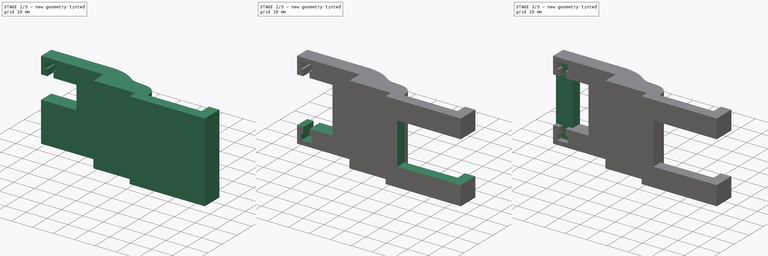
[diagram: build sequence overview — one tinted view per stage of 3, left to right]
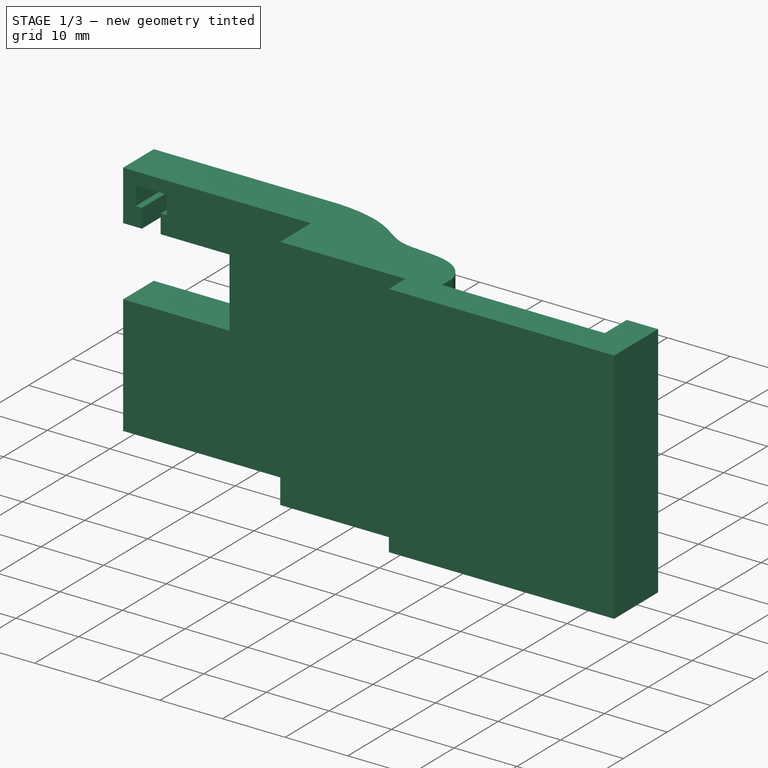
[diagram: stage 1 of 3 — iso view after this stage's code; geometry added in this stage tinted green]
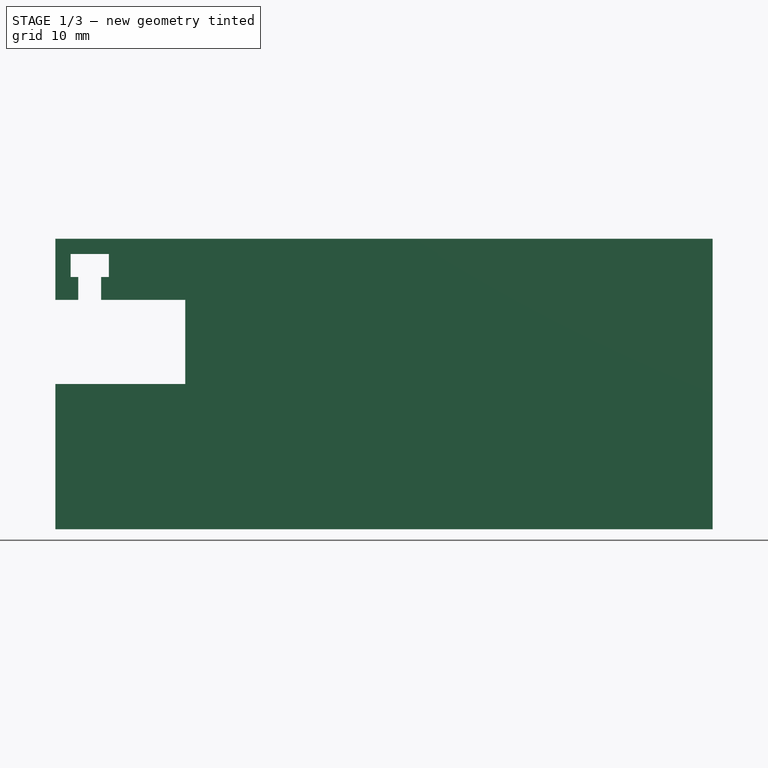
[diagram: stage 1 of 3 — front view after this stage's code; geometry added in this stage tinted green]
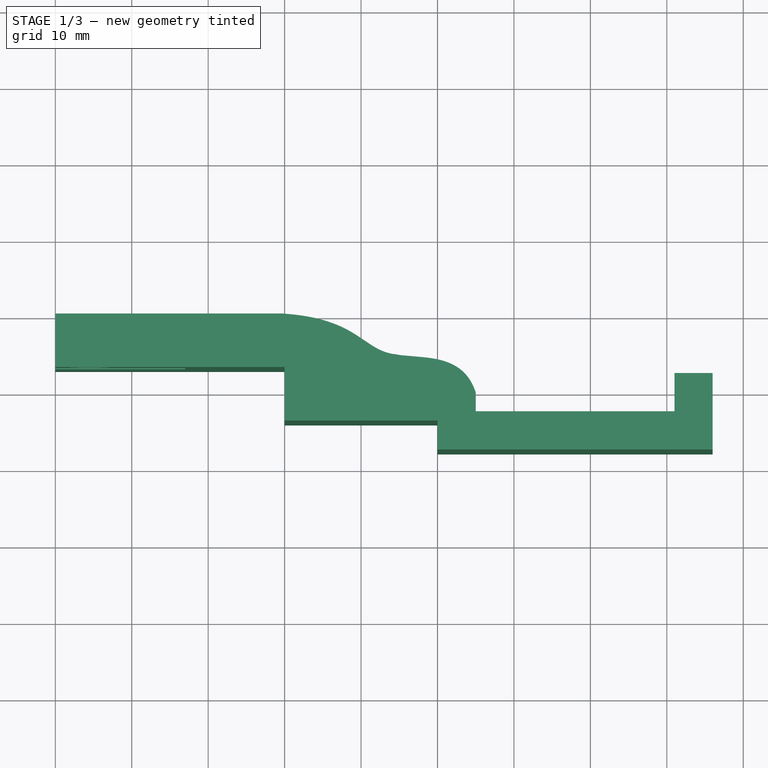
[diagram: stage 1 of 3 — top view after this stage's code; geometry added in this stage tinted green]
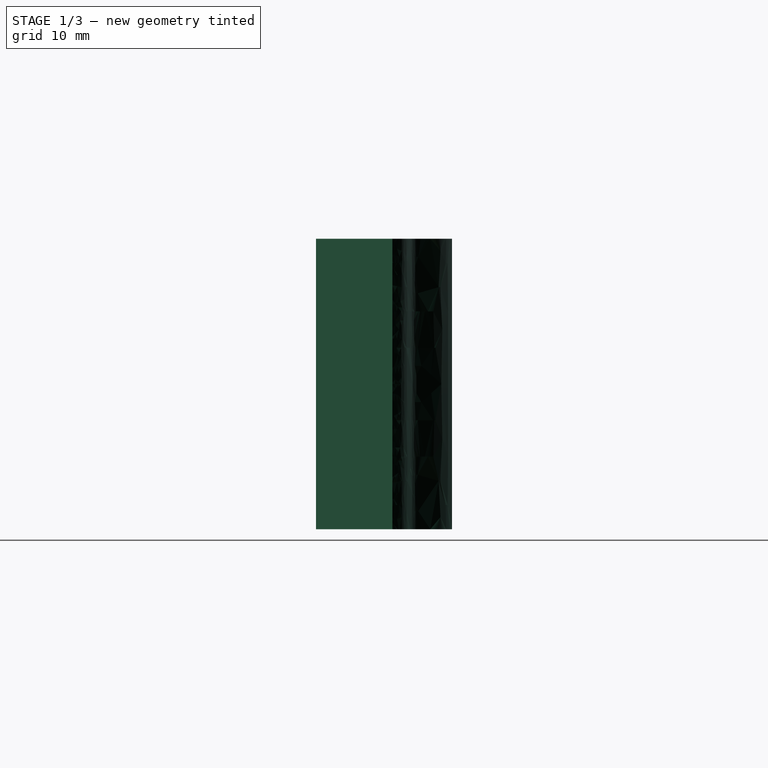
[diagram: stage 1 of 3 — right view after this stage's code; geometry added in this stage tinted green]
FCSTD DOCUMENT  (FreeCAD 0.19R24291 (Git))
Label: support cannr module
Comment: 13x18x24
License: All rights reserved
LicenseURL: http://en.wikipedia.org/wiki/All_rights_reserved
objects: Sketcher::SketchObject×4, PartDesign::Pad×2, PartDesign::Pocket×2, PartDesign::Mirrored×2, PartDesign::Body×2, PartDesign::Plane×1
note: 17 computed .brp shape members not serialized (recipe doc carries the construction recipe); baked Part::Feature solids carry a one-line shape summary decoded from their .brp

FEATURE [Sketcher::SketchObject] Sketch
  FullyConstrained = false
  MapMode = 5
  Support = -> [XY_Plane]
  sketch-geometry (22):
    g0: LineSegment StartX=0 StartY=0 StartZ=0 EndX=29.7056 EndY=0 EndZ=0
    g1: LineSegment StartX=55 StartY=-10.3388 StartZ=0 EndX=55 EndY=-12.7974 EndZ=0
    g2: LineSegment StartX=81 StartY=-12.7974 StartZ=0 EndX=81 EndY=-7.79743 EndZ=0
    g3: LineSegment StartX=81 StartY=-7.79743 StartZ=0 EndX=86 EndY=-7.79743 EndZ=0
    g4: LineSegment StartX=86 StartY=-7.79743 StartZ=0 EndX=86 EndY=-17.7974 EndZ=0
    g5: LineSegment StartX=0 StartY=-7 StartZ=0 EndX=0 EndY=0 EndZ=0
    g6: LineSegment StartX=50 StartY=-17.7974 StartZ=0 EndX=50 EndY=-14 EndZ=0
    g7: LineSegment StartX=30 StartY=-7 StartZ=0 EndX=0 EndY=-7 EndZ=0
    g8: LineSegment StartX=25 StartY=10.6258 StartZ=0 EndX=25 EndY=-56.7623 EndZ=0
    g9: LineSegment StartX=50 StartY=-17.7974 StartZ=0 EndX=86 EndY=-17.7974 EndZ=0
    g10: LineSegment StartX=55 StartY=-12.7974 StartZ=0 EndX=81 EndY=-12.7974 EndZ=0
    g11: LineSegment StartX=30 StartY=-7 StartZ=0 EndX=30 EndY=-14 EndZ=0
    g12: LineSegment StartX=30 StartY=-14 StartZ=0 EndX=50 EndY=-14 EndZ=0
    g13-g17: Circle x5 (B-spline internal-alignment scaffolding for g18; pole/knot coordinates omitted)
    g18: BSplineCurve PolesCount=5 KnotsCount=3 Degree=3 IsPeriodic=0
    g19: GeomPoint X=29.7056 Y=0 Z=0
    g20: GeomPoint X=43.5068 Y=-5.1489 Z=0
    g21: GeomPoint X=55 Y=-10.3388 Z=0
  constraints (43):
    c: Coincident(g-1,g0)
    c: Horizontal(g0)
    c: Vertical(g1)
    c: Vertical(g2)
    c: Coincident(g2,g3)
    c: Horizontal(g3)
    c: Coincident(g3,g4)
    c: Vertical(g4)
    c: Coincident(g5,g0)
    c: Vertical(g5)
    c: Vertical(g6)
    c: Horizontal(g7)
    c: Coincident(g5,g7)
    c: DistanceX(g3,g3) = 5
    c: DistanceY(g5,g0) = 7
    c: Vertical(g8)
    c: DistanceX(g8,g6) = 25
    c: Coincident(g9,g6)
    c: Horizontal(g9)
    c: Coincident(g9,g4)
    c: Coincident(g10,g1)
    c: Coincident(g10,g2)
    c: Horizontal(g10)
    c: DistanceY(g6,g1) = 5
    c: Coincident(g11,g7)
    c: Vertical(g11)
    c: Coincident(g12,g11)
    c: Horizontal(g12)
    c: Coincident(g6,g12)
    c: DistanceY(g11,g11) = 7
    c: DistanceX(g12,g12) = 20
    c: DistanceX(g0,g6) = 50
    c: DistanceY(g2,g2) = 5
    c: DistanceX(g10,g10) = 26
    c: DistanceX(g6,g1) = 5
    c: Coincident(g18,g0)
    c: Weight(g13) = 1
    c: Equal(g13, g14-g17) x4
    c: Coincident(g18,g1)
    c: InternalAlignment(g13-g17 -> g18) x5
    c: InternalAlignment(g19,g18)
    c: InternalAlignment(g20,g18)
    c: InternalAlignment(g21,g18)
FEATURE [PartDesign::Pad] Pad
  AllowMultiFace = false
  Direction = (1,1,1)
  Length = 38
  Length2 = 100
  Profile = -> Sketch
  Type = 0
FEATURE [PartDesign::Plane] DatumPlane
  Length = 60
  MapMode = 5
  Placement = pos=(0,0,0) rot=(0,0.707107,0.707107;3.14159rad)
  ResizeMode = 0
  Support = -> [Pad]
  Width = 60
FEATURE [Sketcher::SketchObject] Sketch001  label="trou accroche"
  AttachmentOffset = pos=(0,30,0) rot=(0,0,1;1.5708rad)
  ExternalGeometry = -> [Pad]
  FullyConstrained = false
  MapMode = 5
  Placement = pos=(0,6.7e-15,30) rot=(0.57735,0.57735,0.57735;4.18879rad)
  Support = -> [DatumPlane]
  sketch-geometry (17):
    g0: LineSegment StartX=0 StartY=17 StartZ=0 EndX=-11 EndY=17 EndZ=0
    g1: LineSegment StartX=-11 StartY=17 StartZ=0 EndX=-11 EndY=0 EndZ=0
    g2: LineSegment StartX=0 StartY=8 StartZ=0 EndX=0 EndY=17 EndZ=0
    g3: LineSegment StartX=-5.5 StartY=76.31 StartZ=0 EndX=-5.5 EndY=-20.9825 EndZ=0
    g4: LineSegment StartX=0 StartY=8 StartZ=0 EndX=0 EndY=6 EndZ=0
    g5: LineSegment StartX=3 StartY=6 StartZ=0 EndX=3 EndY=7 EndZ=0
    g6: LineSegment StartX=3 StartY=6 StartZ=0 EndX=0 EndY=6 EndZ=0
    g7: LineSegment StartX=3 StartY=7 StartZ=0 EndX=6 EndY=7 EndZ=0
    g8: LineSegment StartX=6 StartY=7 StartZ=0 EndX=6 EndY=2 EndZ=0
    g9: LineSegment StartX=6 StartY=2 StartZ=0 EndX=3 EndY=2 EndZ=0
    g10: LineSegment StartX=3 StartY=2 StartZ=0 EndX=3 EndY=3 EndZ=0
    g11: LineSegment StartX=3 StartY=3 StartZ=0 EndX=0 EndY=3 EndZ=0
    g12: LineSegment StartX=-1e-16 StartY=3 StartZ=0 EndX=-1e-16 EndY=0 EndZ=0
    g13: LineSegment StartX=-1e-16 StartY=19.4168 StartZ=0 EndX=-1e-16 EndY=-9.29747 EndZ=0
    g14: LineSegment StartX=3 StartY=-8.58374 StartZ=0 EndX=3 EndY=14.9697 EndZ=0
    g15: LineSegment StartX=-1e-16 StartY=0 StartZ=0 EndX=-11 EndY=0 EndZ=0
    g16: LineSegment StartX=-11 StartY=41.5285 StartZ=0 EndX=-11 EndY=-19.2368 EndZ=0
  constraints (46):
    c: Coincident(g2,g0)
    c: Horizontal(g0)
    c: Vertical(g1)
    c: Vertical(g2)
    c: DistanceY(g2,g2) = 9
    c: DistanceY(g-1,g2) = 8
    c: DistanceX(g0,g0) = 11
    c: Coincident(g4,g2)
    c: Vertical(g4)
    c: Vertical(g5)
    c: Coincident(g6,g5)
    c: Coincident(g6,g4)
    c: Coincident(g7,g5)
    c: Horizontal(g7)
    c: Coincident(g8,g7)
    c: Vertical(g8)
    c: Coincident(g9,g8)
    c: Horizontal(g9)
    c: Coincident(g10,g9)
    c: Coincident(g11,g10)
    c: Horizontal(g11)
    c: Coincident(g12,g11)
    c: PointOnObject(g12,g-1)
    c: DistanceY(g10,g5) = 3
    c: Horizontal(g6)
    c: DistanceY(g8,g8) = 5
    c: DistanceX(g7,g7) = 3
    c: Vertical(g12)
    c: Vertical(g10)
    c: Vertical(g13)
    c: PointOnObject(g0,g13)
    c: Vertical(g14)
    c: PointOnObject(g9,g14)
    c: PointOnObject(g5,g14)
    c: PointOnObject(g12,g13)
    c: DistanceX(g13,g14) = 3
    c: DistanceY(g10,g10) = 1
    c: Symmetric(g0,g0,g3)
    c: DistanceY(g-1,g8) = 2
    c: Coincident(g15,g12)
    c: Coincident(g15,g1)
    c: Horizontal(g15)
    c: Coincident(g1,g0)
    c: DistanceX(g7,g-3) = 2
    c: Vertical(g16)
    c: PointOnObject(g1,g16)
FEATURE [PartDesign::Pocket] Pocket
  AllowMultiFace = false
  BaseFeature = -> Pad
  Length = 5
  Length2 = 100
  Profile = -> Sketch001
  Type = 1
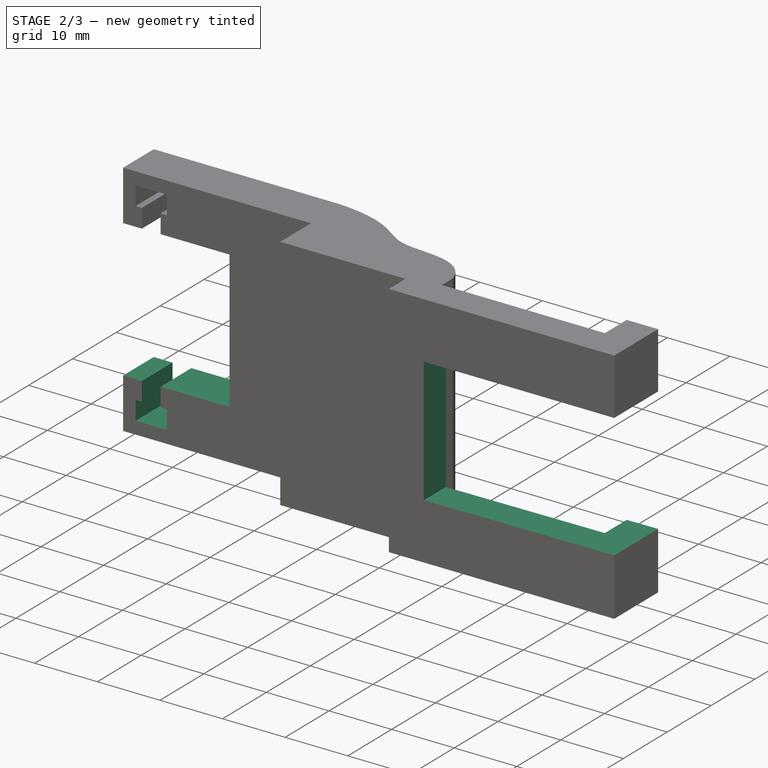
[diagram: stage 2 of 3 — iso view after this stage's code; geometry added in this stage tinted green]
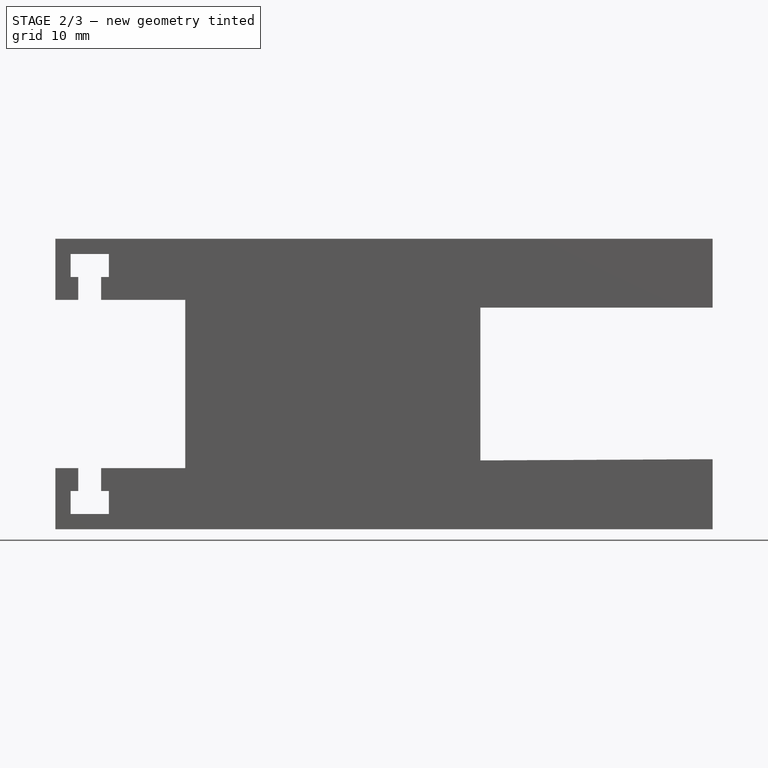
[diagram: stage 2 of 3 — front view after this stage's code; geometry added in this stage tinted green]
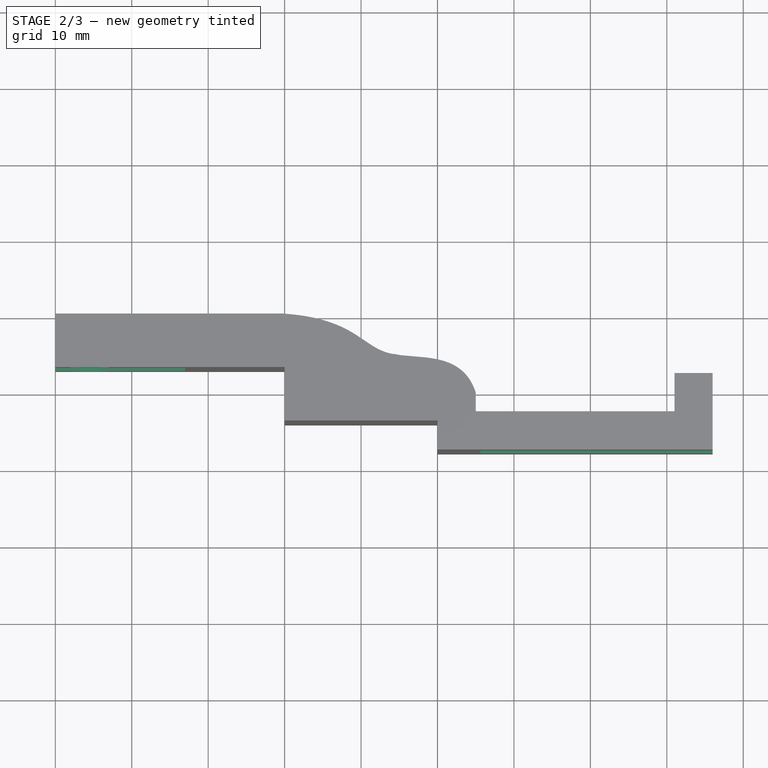
[diagram: stage 2 of 3 — top view after this stage's code; geometry added in this stage tinted green]
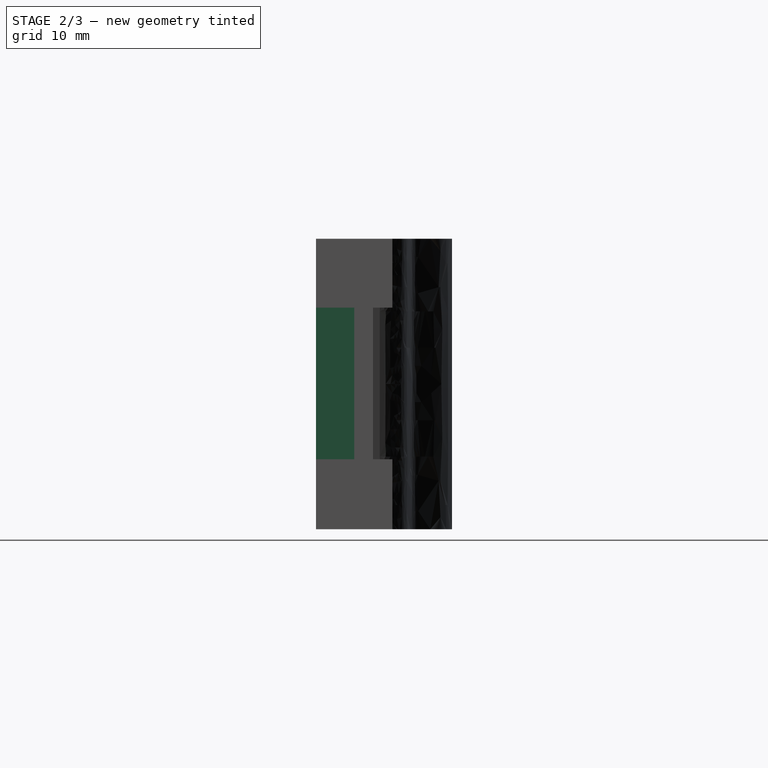
[diagram: stage 2 of 3 — right view after this stage's code; geometry added in this stage tinted green]
FEATURE [Sketcher::SketchObject] Sketch003  label="trou canne"
  AttachmentOffset = pos=(-10,0,0) rot=(0,0,1;0rad)
  ExternalGeometry = -> [Sketch]
  FullyConstrained = false
  MapMode = 5
  Placement = pos=(-10,0,0) rot=(1,0,0;1.5708rad)
  Support = -> [XZ_Plane]
  sketch-geometry (6):
    g0: LineSegment StartX=65.6027 StartY=29 StartZ=0 EndX=97.2243 EndY=29 EndZ=0
    g1: LineSegment StartX=97.2243 StartY=29 StartZ=0 EndX=97.2243 EndY=9.16978 EndZ=0
    g2: LineSegment StartX=97.2243 StartY=9.16978 StartZ=0 EndX=65.6027 EndY=9 EndZ=0
    g3: LineSegment StartX=65.6027 StartY=9 StartZ=0 EndX=65.6027 EndY=29 EndZ=0
    g4: LineSegment StartX=17 StartY=19 StartZ=0 EndX=130.905 EndY=19 EndZ=0
    g5: LineSegment StartX=90.6027 StartY=41.7486 StartZ=0 EndX=90.6027 EndY=-19.8828 EndZ=0
  constraints (5):
    c: Coincident(g2,g3)
    c: Coincident(g0,g3)
    c: Coincident(g1,g2)
    c: Coincident(g0,g1)
    c: Horizontal(g0)
FEATURE [PartDesign::Mirrored] Mirrored
  BaseFeature = -> Pocket
  MirrorPlane = -> Sketch001 [Axis3]
  Originals = -> [Pocket]
FEATURE [PartDesign::Body] Body001  label="fermeture"
  Group = -> [Sketch004,Pad001,Mirrored001]
  Origin = -> Origin001
  Tip = -> Mirrored001
FEATURE [PartDesign::Pocket] Pocket001
  BaseFeature = -> Mirrored
  Length = 5
  Length2 = 100
  Midplane = true
  Profile = -> Sketch003
  Type = 1
FEATURE [PartDesign::Body] Body
  Group = -> [Sketch,Pad,DatumPlane,Sketch001,Pocket,Sketch003,Mirrored,Pocket001]
  Origin = -> Origin
  Tip = -> Pocket001
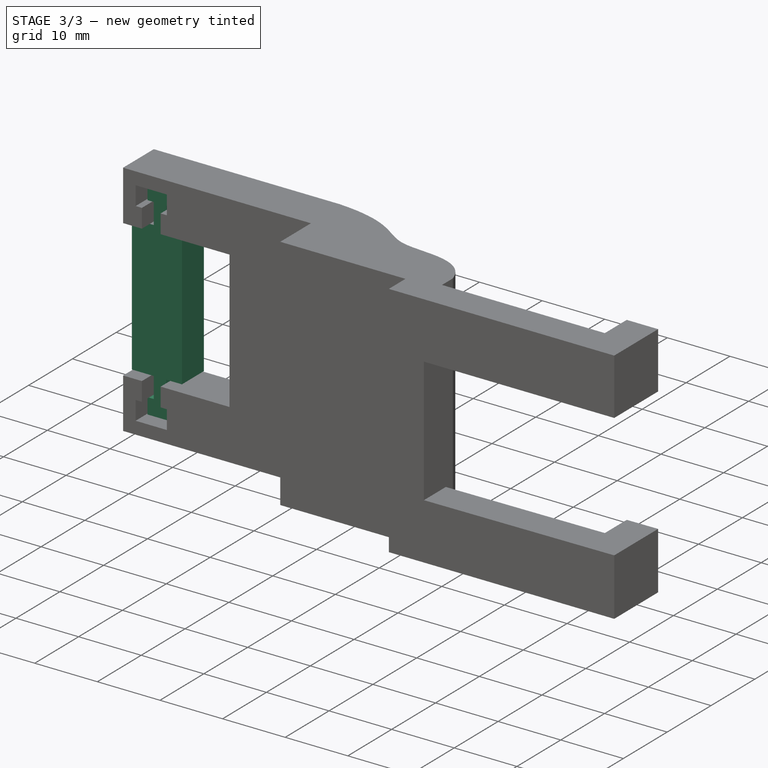
[diagram: stage 3 of 3 — iso view after this stage's code; geometry added in this stage tinted green]
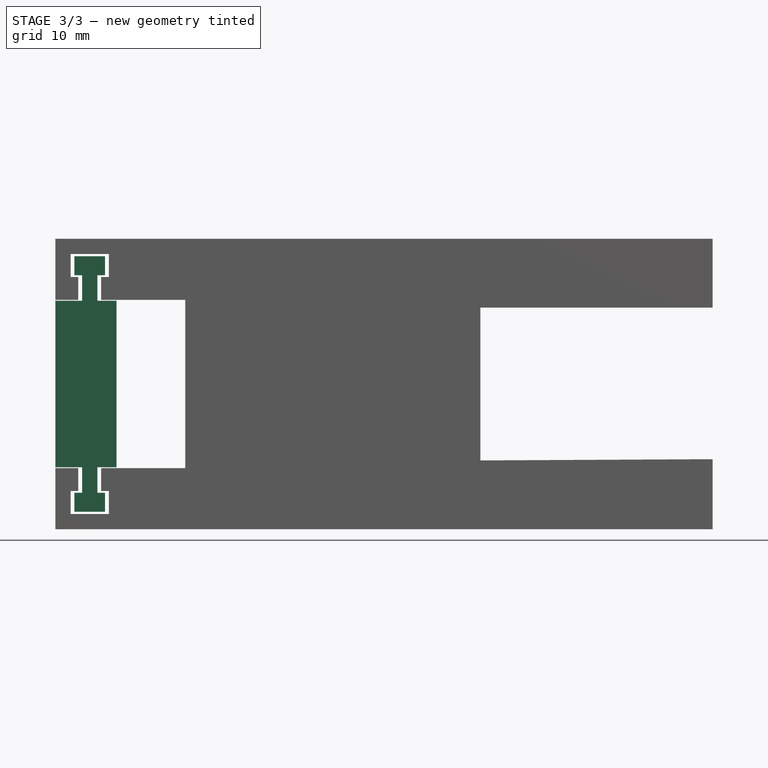
[diagram: stage 3 of 3 — front view after this stage's code; geometry added in this stage tinted green]
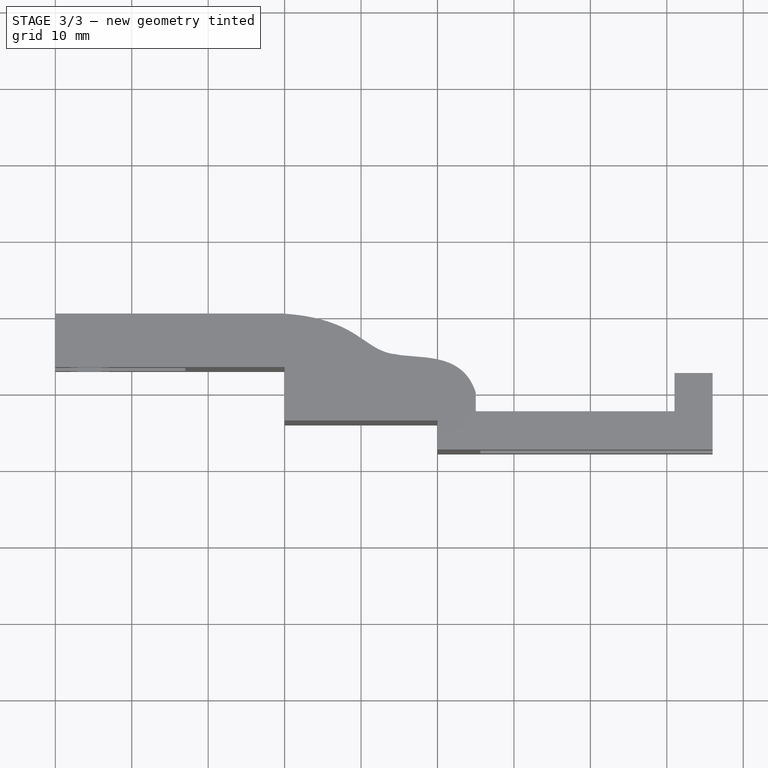
[diagram: stage 3 of 3 — top view after this stage's code; geometry added in this stage tinted green]
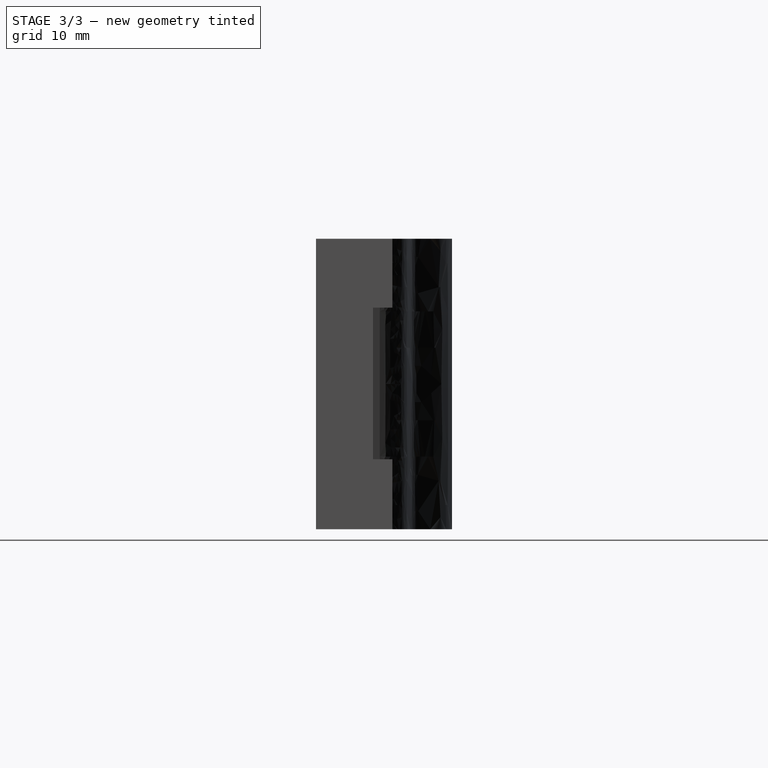
[diagram: stage 3 of 3 — right view after this stage's code; geometry added in this stage tinted green]
FEATURE [Sketcher::SketchObject] Sketch004
  FullyConstrained = false
  MapMode = 5
  Placement = pos=(0,0,0) rot=(1,0,0;1.5708rad)
  Support = -> [XZ_Plane001]
  sketch-geometry (16):
    g0: LineSegment StartX=0 StartY=29.8975 StartZ=0 EndX=3.5 EndY=29.8975 EndZ=0
    g1: LineSegment StartX=3.5 StartY=29.8975 StartZ=0 EndX=3.5 EndY=33.2212 EndZ=0
    g2: LineSegment StartX=3.5 StartY=33.2212 StartZ=0 EndX=2.5 EndY=33.2212 EndZ=0
    g3: LineSegment StartX=2.5 StartY=33.2212 StartZ=0 EndX=2.5 EndY=35.7212 EndZ=0
    g4: LineSegment StartX=2.5 StartY=35.7212 StartZ=0 EndX=6.5 EndY=35.7212 EndZ=0
    g5: LineSegment StartX=6.5 StartY=35.7212 StartZ=0 EndX=6.5 EndY=33.2212 EndZ=0
    g6: LineSegment StartX=6.5 StartY=33.2212 StartZ=0 EndX=5.5 EndY=33.2212 EndZ=0
    g7: LineSegment StartX=5.5 StartY=33.2212 StartZ=0 EndX=5.5 EndY=29.8975 EndZ=0
    g8: LineSegment StartX=5.5 StartY=29.8975 StartZ=0 EndX=8 EndY=29.8975 EndZ=0
    g9: LineSegment StartX=8 StartY=29.8975 StartZ=0 EndX=8 EndY=19 EndZ=0
    g10: LineSegment StartX=0 StartY=19 StartZ=0 EndX=0 EndY=29.8975 EndZ=0
    g11: LineSegment StartX=0 StartY=29.8975 StartZ=0 EndX=13.7344 EndY=29.8975 EndZ=0
    g12: LineSegment StartX=0 StartY=19 StartZ=0 EndX=8 EndY=19 EndZ=0
    g13: ArcOfCircle CenterX=-7.19872 CenterY=32.0149 CenterZ=0 NormalX=0 NormalY=0 NormalZ=1 AngleXU=0 Radius=18.649 StartAngle=0.060304 EndAngle=0.0649536
    g14: LineSegment StartX=-7.22995 StartY=33.2212 StartZ=0 EndX=11.2893 EndY=33.2212 EndZ=0
    g15: LineSegment StartX=-14.0533 StartY=19 StartZ=0 EndX=31.1931 EndY=19 EndZ=0
  constraints (40):
    c: PointOnObject(g0,g-2)
    c: Horizontal(g0)
    c: Coincident(g0,g1)
    c: Vertical(g1)
    c: Coincident(g1,g2)
    c: Horizontal(g2)
    c: Coincident(g2,g3)
    c: Vertical(g3)
    c: Coincident(g3,g4)
    c: Horizontal(g4)
    c: Coincident(g4,g5)
    c: Vertical(g5)
    c: Coincident(g5,g6)
    c: Horizontal(g6)
    c: Coincident(g6,g7)
    c: Coincident(g7,g8)
    c: Horizontal(g8)
    c: Coincident(g8,g9)
    c: Vertical(g9)
    c: Coincident(g10,g0)
    c: Vertical(g10)
    c: DistanceX(g4,g4) = 4
    c: DistanceX(g0,g7) = 2
    c: Vertical(g7)
    c: Coincident(g11,g0)
    c: Horizontal(g11)
    c: PointOnObject(g8,g11)
    c: Coincident(g12,g10)
    c: Coincident(g12,g9)
    c: Horizontal(g12)
    c: DistanceX(g6,g6) = 1
    c: DistanceY(g3,g3) = 2.5
    c: Horizontal(g14)
    c: PointOnObject(g2,g14)
    c: PointOnObject(g6,g14)
    c: DistanceX(g0,g0) = 3.5
    c: DistanceX(g7,g8) = 2.5
    c: Horizontal(g15)
    c: DistanceY(g-1,g15) = 19
    c: PointOnObject(g9,g15)
FEATURE [PartDesign::Pad] Pad001
  Direction = (1,1,1)
  Length = 5
  Length2 = 100
  Placement = pos=(0,0,0) rot=(1,0,0;1.5708rad)
  Profile = -> Sketch004
  Type = 0
FEATURE [PartDesign::Mirrored] Mirrored001
  BaseFeature = -> Pad001
  MirrorPlane = -> Sketch004 [Axis2]
  Originals = -> [Pad001]
  Placement = pos=(0,0,0) rot=(1,0,0;1.5708rad)
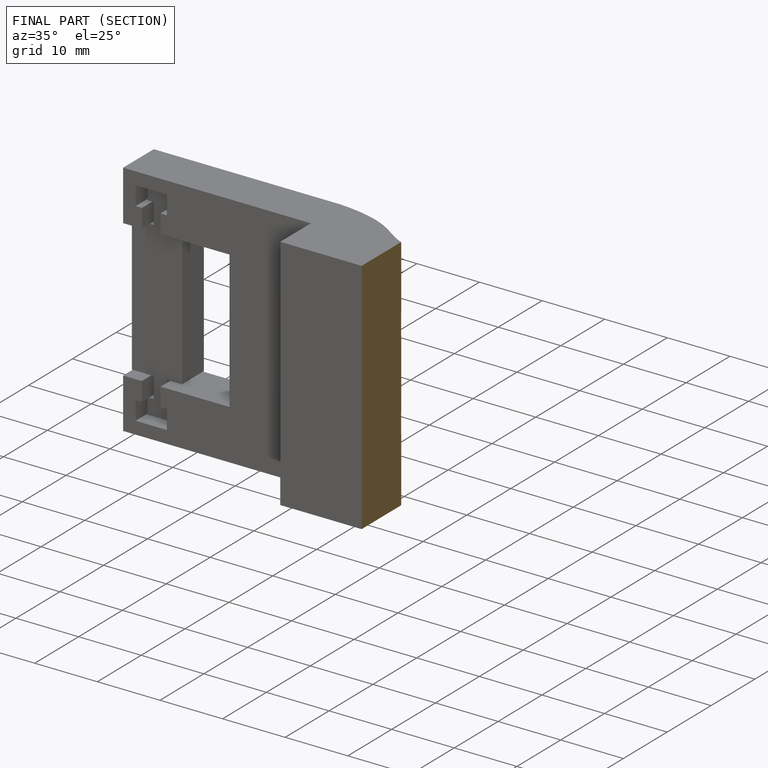
[diagram: finished part — half-section view (interior)]
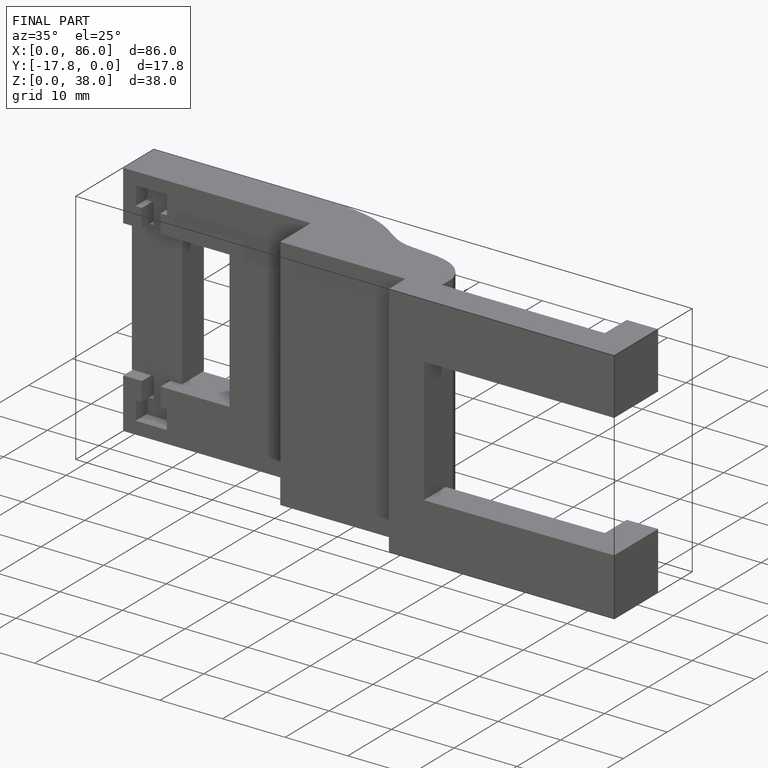
[diagram: finished part — iso view with bounding-box wireframe]
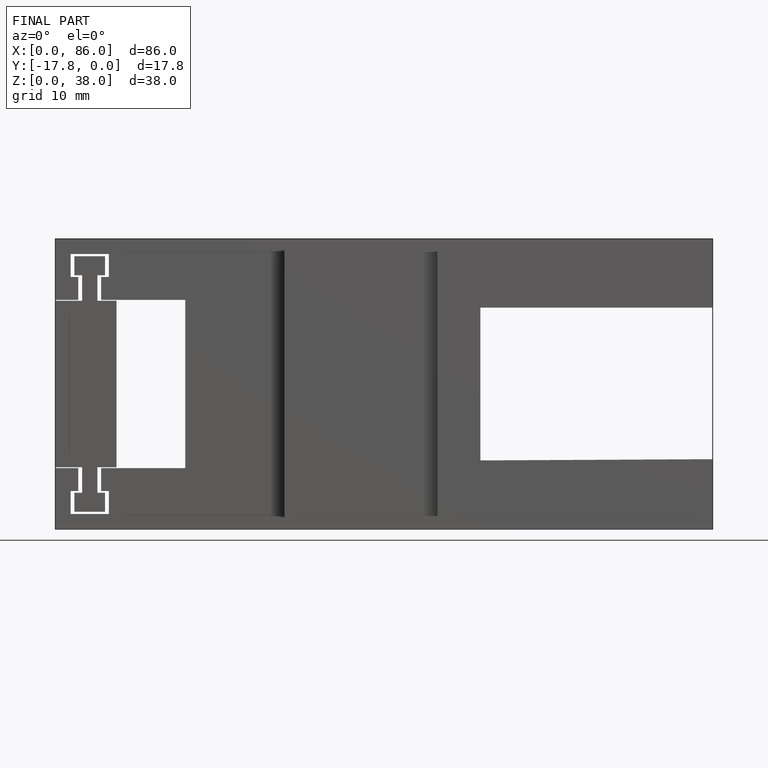
[diagram: finished part — front view with bounding-box wireframe]
